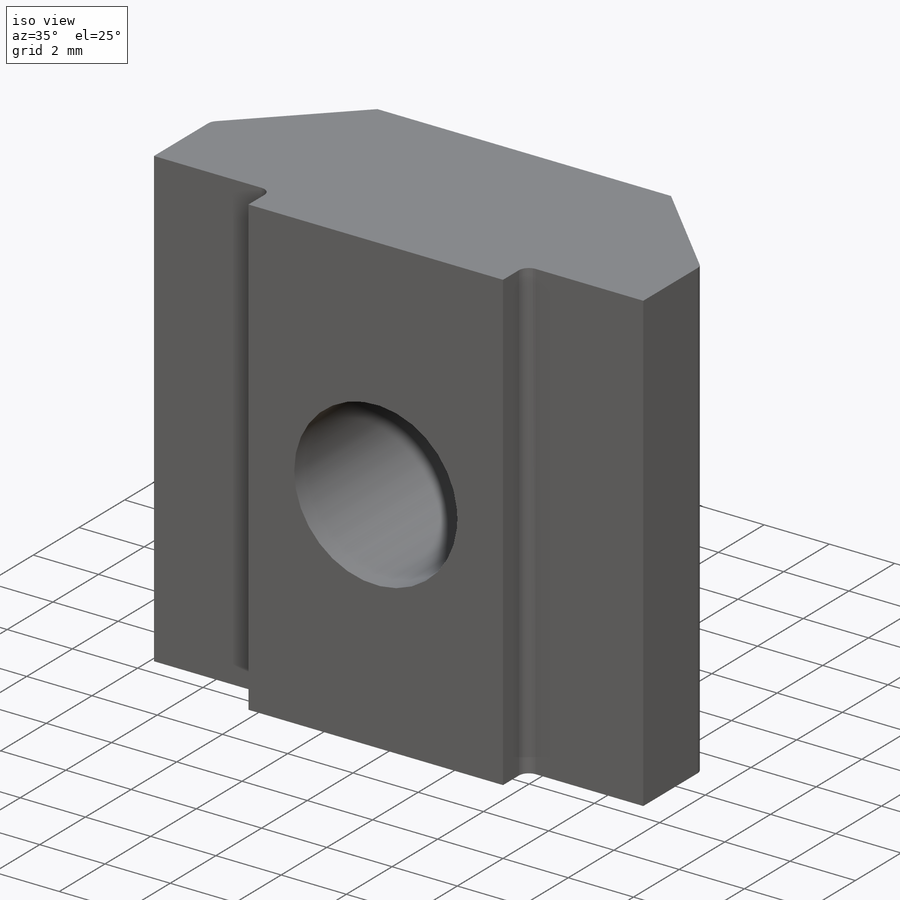
[diagram: iso view]
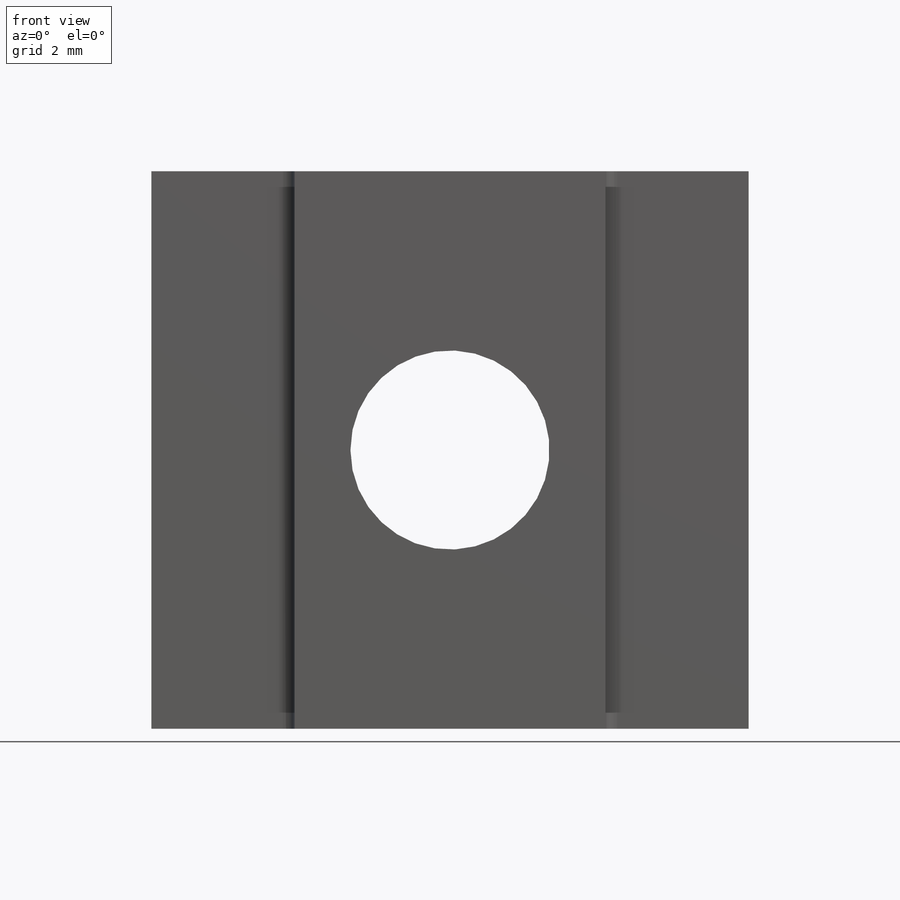
[diagram: front view]
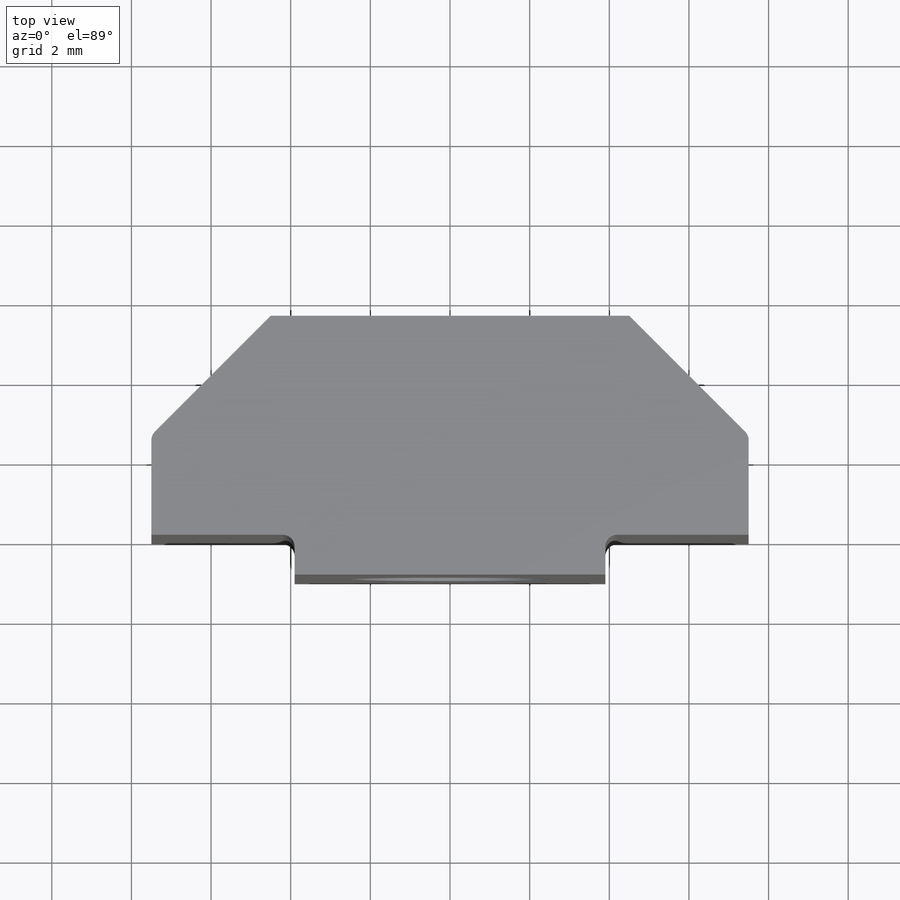
[diagram: top view]
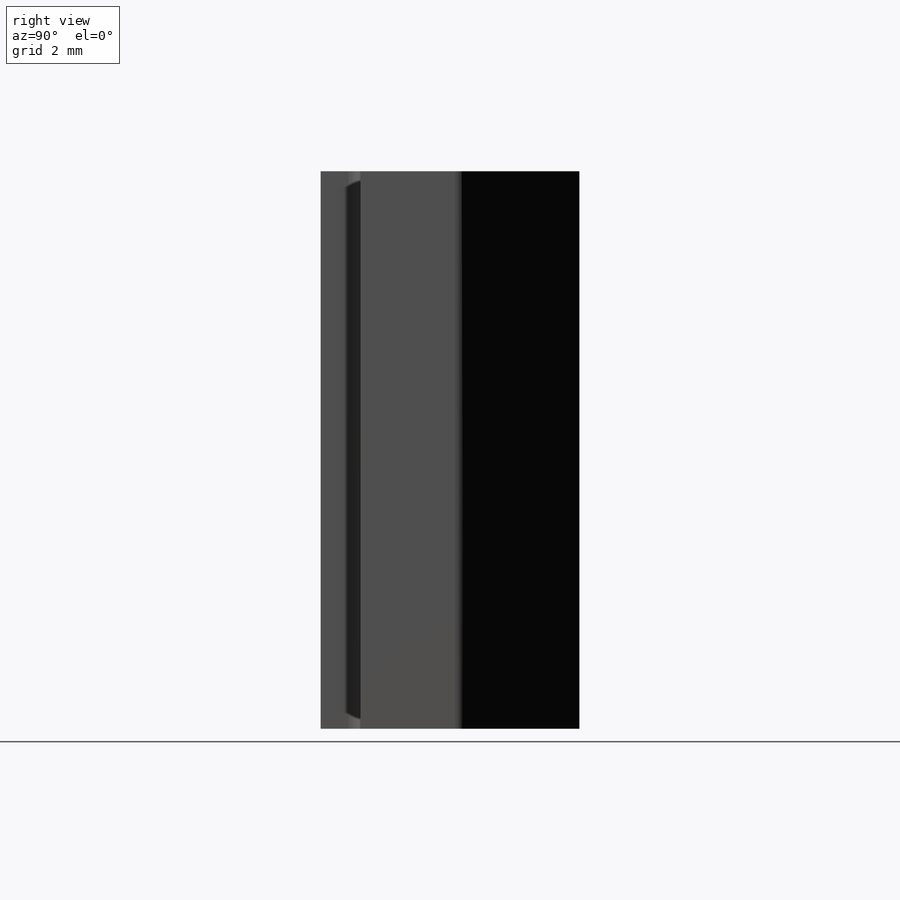
[diagram: right view]
SOLIDWORKS PART (.sldprt)
format: sldprt  version: not decoded by parser v0  size: 205,824 bytes
history: native  units: mm
features: sketch x5, extrude x2, thread x2, material x1, hole x1, chamfer x1, fillet x1 (+13 scaffold rows collapsed)
feature tree (26):
  scaffold x13  (default folders/planes/origin — collapsed)
  material  "Acciaio inossidabile al cromo"
  sketch  "Sketch1"  dims[D1=15.0mm D2=14.0mm]
  extrude  "Extrude1"  Depth=5.5mm
  sketch  "Sketch2"  dims[D1=7.8mm]
  extrude  "Extrude2"  Depth=1mm
  sketch  "Sketch6"
  hole  "M6x1.0 Tapped Hole1"  Diameter=5mm Depth=6.500025mm
  sketch  "3DSketch3"
  sketch  "Sketch7"  dims[hole-wizard template sketch: 60 standard entries collapsed; hole parameters kept: c18.Thru Tap Drill Depth=~6.500025mm]
  thread  "Cosmetic Thread1"  Diameter=6mm  [1 undecoded]
  thread  "Cosmetic Thread2"  Diameter=6mm  [1 undecoded]
  chamfer  "Chamfer1"  Distance=3mm Angle=45deg
  fillet  "Fillet1"  Radius=0.3mm
decode coverage: 10 of 12 modeling features carry decoded parameters
note: ~ marks probable driven/reference dimensions
note: 2 parameter values undecoded
note: suppression state not decoded; provenance and decode notes live in map.json
